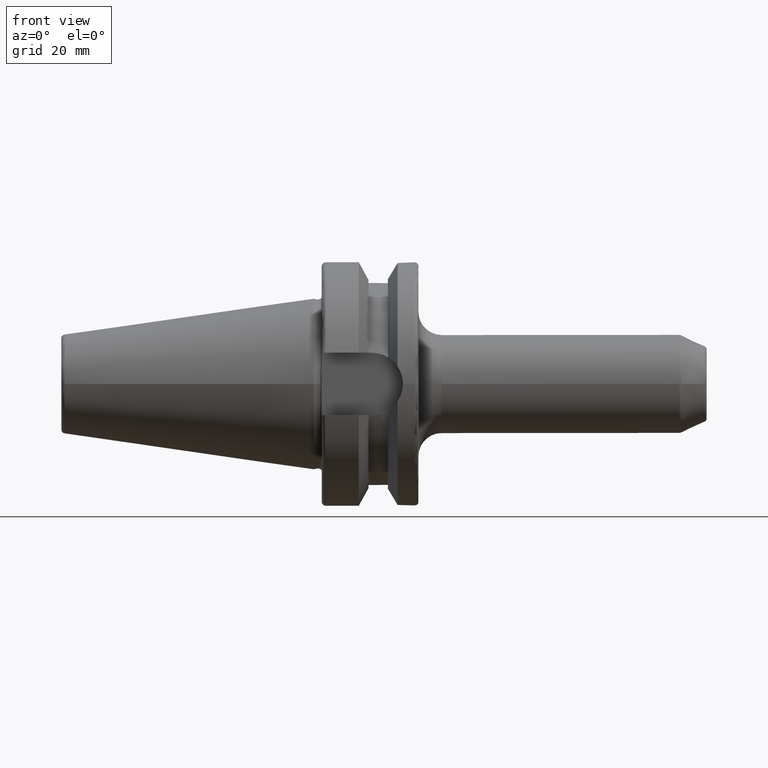
[diagram: clean part render]
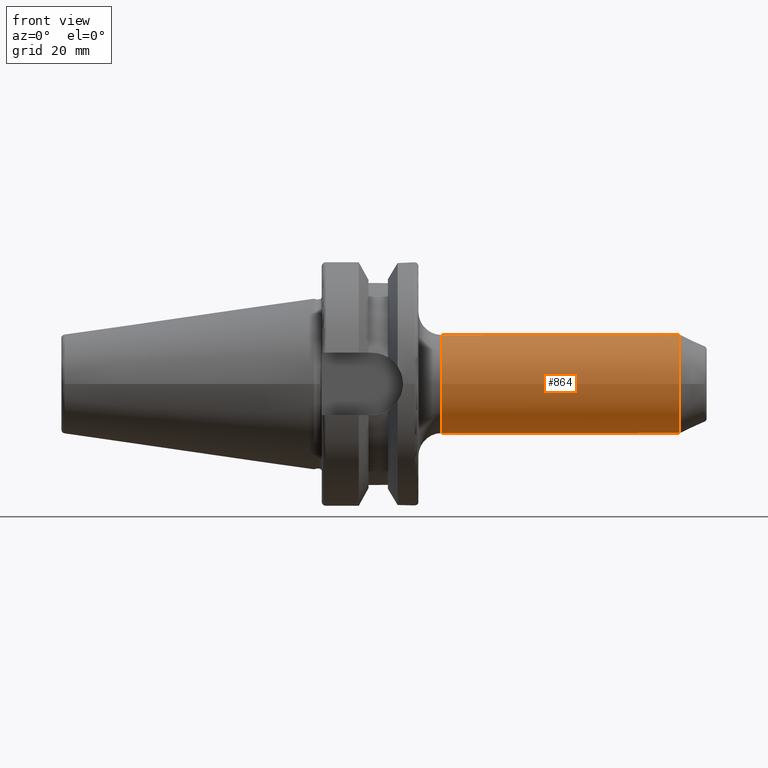
[diagram: same view with one face highlighted and labeled with its STEP entity id]
A machine part, front view. The second image highlights one B-rep face of the part: STEP entity #864.
In plain terms, the highlighted cylindrical surface (bore or boss wall) has radius 12.7 mm, axis along (1, 0, 0).
Its self-contained STEP definition (entity closure, byte-faithful):
#36=B_SPLINE_CURVE_WITH_KNOTS('',3,(#1436,#1437,#1438,#1439,#1440,#1441,
#1442,#1443,#1444,#1445,#1446,#1447,#1448,#1449,#1450,#1451,#1452,#1453),
 .UNSPECIFIED.,.F.,.F.,(4,2,2,2,2,2,2,2,4),(0.636669040983476,0.795800916218894,
0.954932791454312,1.11413543671063,1.27333808196695,1.43254072722327,1.59174337247959,
1.75087524771501,1.91000712295043),.UNSPECIFIED.);
#37=B_SPLINE_CURVE_WITH_KNOTS('',3,(#1454,#1455,#1456,#1457,#1458,#1459,
#1460,#1461,#1462,#1463,#1464,#1465,#1466,#1467,#1468,#1469,#1470,#1471,
#1472),.UNSPECIFIED.,.F.,.F.,(4,2,2,2,3,2,2,2,4),(1.91000712295043,2.06913899818585,
2.22827087342126,2.38747351867758,2.5466761639339,2.70587880919022,2.86508145444655,
3.02421332968196,3.18334520491738),.UNSPECIFIED.);
#55=LINE('',#1430,#100);
#100=VECTOR('',#1097,12.7);
#144=CYLINDRICAL_SURFACE('',#954,12.7);
#160=FACE_BOUND('',#241,.T.);
#186=FACE_OUTER_BOUND('',#240,.T.);
#240=EDGE_LOOP('',(#613,#614,#615,#616,#617,#618));
#241=EDGE_LOOP('',(#619,#620));
#304=CIRCLE('',#952,12.7);
#305=CIRCLE('',#953,12.7);
#306=CIRCLE('',#955,12.7);
#307=CIRCLE('',#956,12.7);
#370=VERTEX_POINT('',#1423);
#371=VERTEX_POINT('',#1425);
#372=VERTEX_POINT('',#1429);
#373=VERTEX_POINT('',#1431);
#374=VERTEX_POINT('',#1434);
#375=VERTEX_POINT('',#1435);
#463=EDGE_CURVE('',#370,#371,#304,.T.);
#464=EDGE_CURVE('',#371,#370,#305,.T.);
#465=EDGE_CURVE('',#371,#372,#55,.T.);
#466=EDGE_CURVE('',#373,#372,#306,.T.);
#467=EDGE_CURVE('',#372,#373,#307,.T.);
#468=EDGE_CURVE('',#374,#375,#36,.T.);
#469=EDGE_CURVE('',#375,#374,#37,.T.);
#613=ORIENTED_EDGE('',*,*,#464,.F.);
#614=ORIENTED_EDGE('',*,*,#465,.T.);
#615=ORIENTED_EDGE('',*,*,#466,.F.);
#616=ORIENTED_EDGE('',*,*,#467,.F.);
#617=ORIENTED_EDGE('',*,*,#465,.F.);
#618=ORIENTED_EDGE('',*,*,#463,.F.);
#619=ORIENTED_EDGE('',*,*,#468,.T.);
#620=ORIENTED_EDGE('',*,*,#469,.T.);
#864=ADVANCED_FACE('',(#186,#160),#144,.T.);
#952=AXIS2_PLACEMENT_3D('',#1426,#1091,#1092);
#953=AXIS2_PLACEMENT_3D('',#1427,#1093,#1094);
#954=AXIS2_PLACEMENT_3D('',#1428,#1095,#1096);
#955=AXIS2_PLACEMENT_3D('',#1432,#1098,#1099);
#956=AXIS2_PLACEMENT_3D('',#1433,#1100,#1101);
#1091=DIRECTION('center_axis',(1.,0.,0.));
#1092=DIRECTION('ref_axis',(0.,-1.,1.83697019872103E-16));
#1093=DIRECTION('center_axis',(1.,0.,0.));
#1094=DIRECTION('ref_axis',(0.,-1.,1.83697019872103E-16));
#1095=DIRECTION('center_axis',(1.,0.,0.));
#1096=DIRECTION('ref_axis',(0.,1.,0.));
#1097=DIRECTION('',(-1.,0.,0.));
#1098=DIRECTION('center_axis',(-1.,0.,0.));
#1099=DIRECTION('ref_axis',(0.,-1.,-1.22464679914735E-16));
#1100=DIRECTION('center_axis',(-1.,0.,0.));
#1101=DIRECTION('ref_axis',(0.,-1.,-1.22464679914735E-16));
#1423=CARTESIAN_POINT('',(94.5158831917264,-1.55530143491714E-15,12.7));
#1425=CARTESIAN_POINT('',(94.5158831917264,-12.7,-1.55530143491714E-15));
#1426=CARTESIAN_POINT('Origin',(94.5158831917264,0.,0.));
#1427=CARTESIAN_POINT('Origin',(94.5158831917264,0.,0.));
#1428=CARTESIAN_POINT('Origin',(60.8687889271847,0.,0.));
#1429=CARTESIAN_POINT('',(33.,-12.7,-1.55530143491714E-15));
#1430=CARTESIAN_POINT('',(60.8687889271847,-12.7,-1.55530143491714E-15));
#1431=CARTESIAN_POINT('',(33.,-1.55530143491714E-15,-12.7));
#1432=CARTESIAN_POINT('Origin',(33.,0.,0.));
#1433=CARTESIAN_POINT('Origin',(33.,0.,0.));
#1434=CARTESIAN_POINT('',(81.409,12.7,0.));
#1435=CARTESIAN_POINT('',(89.791,12.7,0.));
#1436=CARTESIAN_POINT('Ctrl Pts',(81.409,12.7,2.77555756156289E-16));
#1437=CARTESIAN_POINT('Ctrl Pts',(81.409,12.7,-0.53043958411806));
#1438=CARTESIAN_POINT('Ctrl Pts',(81.5158174021544,12.663506771752,-1.09358246218165));
#1439=CARTESIAN_POINT('Ctrl Pts',(81.9447849696658,12.5317378519281,-2.12505829952587));
#1440=CARTESIAN_POINT('Ctrl Pts',(82.266723935059,12.4381420283447,-2.59369297496467));
#1441=CARTESIAN_POINT('Ctrl Pts',(83.0064714808072,12.260624915635,-3.33344052071282));
#1442=CARTESIAN_POINT('Ctrl Pts',(83.4750405141281,12.1646954291669,-3.6552527996376));
#1443=CARTESIAN_POINT('Ctrl Pts',(84.5062734300156,12.0274937220073,-4.08412599157319));
#1444=CARTESIAN_POINT('Ctrl Pts',(85.0693245158122,11.9885578365373,-4.191));
#1445=CARTESIAN_POINT('Ctrl Pts',(86.1306754841877,11.9885578365373,-4.191));
#1446=CARTESIAN_POINT('Ctrl Pts',(86.6937265699843,12.0274937220073,-4.08412599157319));
#1447=CARTESIAN_POINT('Ctrl Pts',(87.7249594858719,12.1646954291669,-3.6552527996376));
#1448=CARTESIAN_POINT('Ctrl Pts',(88.1935285191928,12.260624915635,-3.33344052071282));
#1449=CARTESIAN_POINT('Ctrl Pts',(88.933276064941,12.4381420283447,-2.59369297496467));
#1450=CARTESIAN_POINT('Ctrl Pts',(89.2552150303342,12.5317378519281,-2.12505829952587));
#1451=CARTESIAN_POINT('Ctrl Pts',(89.6841825978456,12.663506771752,-1.09358246218165));
#1452=CARTESIAN_POINT('Ctrl Pts',(89.791,12.7,-0.530439584118058));
#1453=CARTESIAN_POINT('Ctrl Pts',(89.791,12.7,1.66533453693773E-15));
#1454=CARTESIAN_POINT('Ctrl Pts',(89.791,12.7,-4.71844785465692E-15));
#1455=CARTESIAN_POINT('Ctrl Pts',(89.791,12.7,0.530439584118055));
#1456=CARTESIAN_POINT('Ctrl Pts',(89.6841825978456,12.663506771752,1.09358246218165));
#1457=CARTESIAN_POINT('Ctrl Pts',(89.2552150303342,12.5317378519281,2.12505829952586));
#1458=CARTESIAN_POINT('Ctrl Pts',(88.933276064941,12.4381420283447,2.59369297496467));
#1459=CARTESIAN_POINT('Ctrl Pts',(88.1935285191928,12.260624915635,3.33344052071282));
#1460=CARTESIAN_POINT('Ctrl Pts',(87.7249594858719,12.1646954291669,3.6552527996376));
#1461=CARTESIAN_POINT('Ctrl Pts',(86.6937265699843,12.0274937220073,4.08412599157319));
#1462=CARTESIAN_POINT('Ctrl Pts',(86.1306754841877,11.9885578365373,4.191));
#1463=CARTESIAN_POINT('Ctrl Pts',(85.6,11.9885578365373,4.191));
#1464=CARTESIAN_POINT('Ctrl Pts',(85.0693245158122,11.9885578365373,4.191));
#1465=CARTESIAN_POINT('Ctrl Pts',(84.5062734300156,12.0274937220073,4.08412599157319));
#1466=CARTESIAN_POINT('Ctrl Pts',(83.4750405141281,12.1646954291669,3.6552527996376));
#1467=CARTESIAN_POINT('Ctrl Pts',(83.0064714808072,12.260624915635,3.33344052071282));
#1468=CARTESIAN_POINT('Ctrl Pts',(82.266723935059,12.4381420283447,2.59369297496467));
#1469=CARTESIAN_POINT('Ctrl Pts',(81.9447849696658,12.5317378519281,2.12505829952587));
#1470=CARTESIAN_POINT('Ctrl Pts',(81.5158174021544,12.663506771752,1.09358246218165));
#1471=CARTESIAN_POINT('Ctrl Pts',(81.409,12.7,0.53043958411806));
#1472=CARTESIAN_POINT('Ctrl Pts',(81.409,12.7,2.77555756156289E-16));